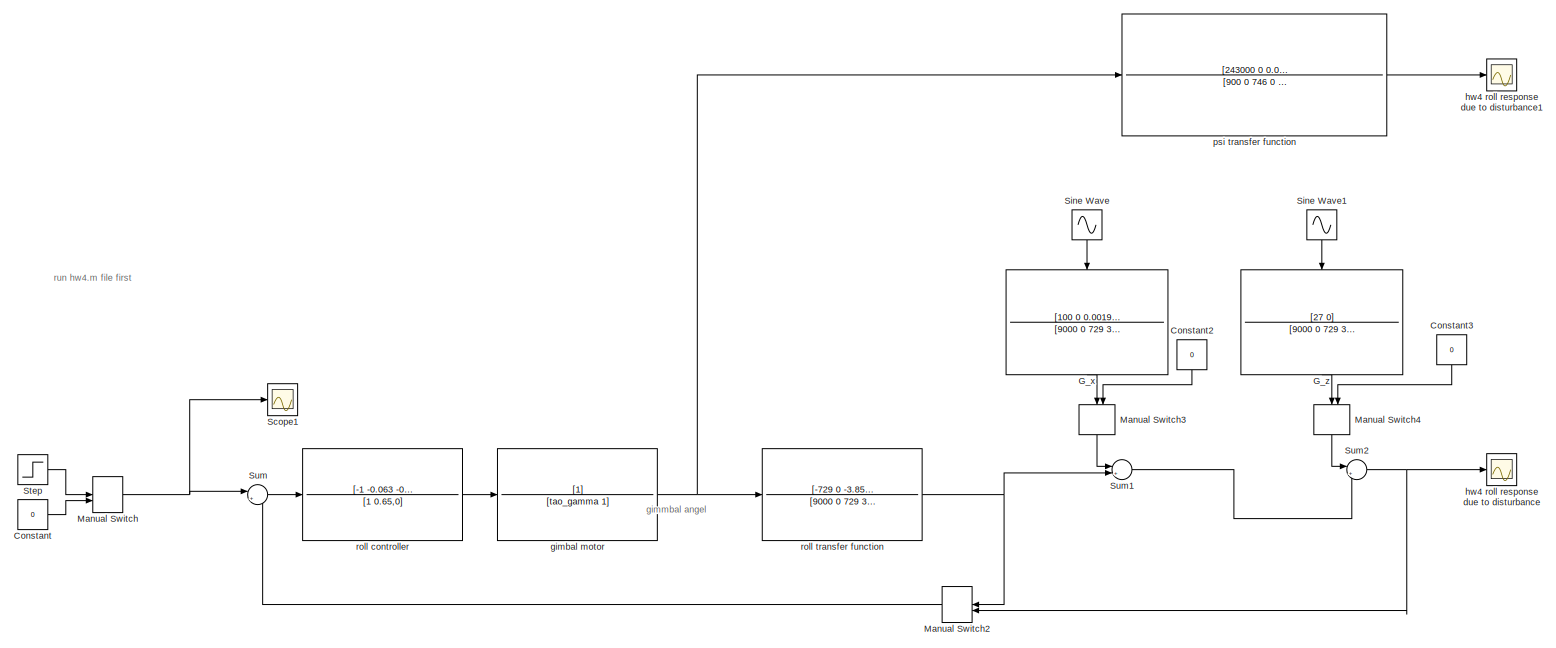
[diagram: root canvas - part 1/2, full width, top band]
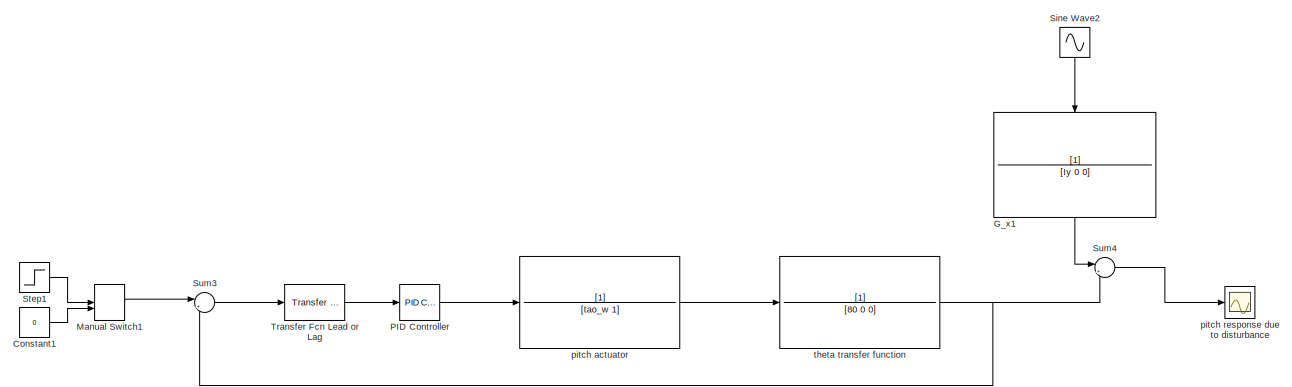
[diagram: root canvas - part 2/2, full width, bottom band]
MODEL slx_1a689a8380d3
KIND model
CONFIG AbsTol = auto
CONFIG EnableMultiTasking = off
CONFIG FixedStep = auto
CONFIG MaxStep = auto
CONFIG MinStep = auto
CONFIG RelTol = 1e-3
CONFIG SampleTimeConstraint = Unconstrained
CONFIG SolverName = VariableStepAuto
CONFIG StartTime = 0.0
CONFIG StopTime = 100
BLOCK [Constant] Constant
  Value = 0
BLOCK [Constant] Constant1
  Value = 0
BLOCK [Constant] Constant2
  NameLocation = left
  Value = 0
BLOCK [Constant] Constant3
  NameLocation = left
  Value = 0
BLOCK [TransferFcn] G_x
  Denominator = [9000 0 729 3.855e-6]
  NameLocation = left
  Numerator = [100 0 0.001963]
BLOCK [TransferFcn] G_x1
  Denominator = [Iy 0 0]
  NameLocation = left
BLOCK [TransferFcn] G_z
  Denominator = [9000 0 729 3.855e-6]
  NameLocation = left
  Numerator = [27 0]
BLOCK [ManualSwitch] Manual Switch
BLOCK [ManualSwitch] Manual Switch1
BLOCK [ManualSwitch] Manual Switch2
  CurrentSetting = 0
  NameLocation = top
BLOCK [ManualSwitch] Manual Switch3
  CurrentSetting = 0
  NameLocation = left
BLOCK [ManualSwitch] Manual Switch4
  CurrentSetting = 0
  NameLocation = left
BLOCK [Reference] PID Controller  REF=slpidlib/PID Controller
  LibrarySourceBlock = simulink/Continuous/PID Controller
  SourceBlock = slpidlib/PID Controller
  SourceType = PID 1dof
BLOCK [Scope] Scope1
  Floating = off
  NumInputPorts = 1
  ScopeSpecificationString = Simulink.scopes.TimeScopeBlockCfg('CurrentConfiguration', extmgr.ConfigurationSet(extmgr.Configuration('Core','General UI',true),extmgr.Configuration('Core','Source UI',true),extmgr.Configuration('Sources','WiredSimulink',true,'DataLoggingVariableName','ScopeData1'),extmgr.Configuration('Visuals','Time Domain',true,'SerializedDisplays',{struct('MinYLimReal','0.07727','MaxYLimReal','0.09727','YLabe...<+1370ch>
BLOCK [Sin] Sine Wave
  Amplitude = 10e-4
  Bias = 10e-5
  Frequency = w0
  NameLocation = left
  SampleTime = 0
BLOCK [Sin] Sine Wave1
  Amplitude = 10e-4
  Bias = 10e-5
  Frequency = w0
  NameLocation = left
  SampleTime = 0
BLOCK [Sin] Sine Wave2
  Amplitude = 10e-4
  Bias = 10e-5
  Frequency = w0
  NameLocation = left
  SampleTime = 0
BLOCK [Step] Step
  After = deg2rad(5)
  Before = deg2rad(5)
  SampleTime = 0
BLOCK [Step] Step1
  After = deg2rad(5)
  Before = deg2rad(5)
  SampleTime = 0
BLOCK [Sum] Sum
  Inputs = |+-
BLOCK [Sum] Sum1
  Inputs = |++
BLOCK [Sum] Sum2
  Inputs = |++
BLOCK [Sum] Sum3
  Inputs = |+-
BLOCK [Sum] Sum4
  Inputs = |++
BLOCK [Reference] Transfer Fcn Lead or Lag  REF=simulink/Discrete/Transfer Fcn
Lead or Lag
  SourceBlock = simulink/Discrete/Transfer Fcn\nLead or Lag
  SourceType = Lead or Lag Compensator
BLOCK [TransferFcn] gimbal motor
  Denominator = [tao_gamma 1]
BLOCK [Scope] hw4 roll response due to disturbance
  Floating = off
  NumInputPorts = 1
  ScopeSpecificationString = Simulink.scopes.TimeScopeBlockCfg('CurrentConfiguration', extmgr.ConfigurationSet(extmgr.Configuration('Core','General UI',true),extmgr.Configuration('Core','Source UI',true),extmgr.Configuration('Sources','WiredSimulink',true),extmgr.Configuration('Visuals','Time Domain',true,'SerializedDisplays',{struct('MinYLimReal','-0.00644','MaxYLimReal','0.00594','YLabelReal','','MinYLimMag','0.00000','MaxY...<+1324ch>
BLOCK [Scope] hw4 roll response due to disturbance1
  Floating = off
  NumInputPorts = 1
  ScopeSpecificationString = Simulink.scopes.TimeScopeBlockCfg('CurrentConfiguration', extmgr.ConfigurationSet(extmgr.Configuration('Core','General UI',true),extmgr.Configuration('Core','Source UI',true),extmgr.Configuration('Sources','WiredSimulink',true,'DataLoggingVariableName','ScopeData1'),extmgr.Configuration('Visuals','Time Domain',true,'SerializedDisplays',{struct('MinYLimReal','-5.85078','MaxYLimReal','6.26158','YLab...<+1380ch>
BLOCK [TransferFcn] pitch actuator
  Denominator = [tao_w 1]
BLOCK [Scope] pitch response due to disturbance
  Floating = off
  NumInputPorts = 1
  ScopeSpecificationString = Simulink.scopes.TimeScopeBlockCfg('CurrentConfiguration', extmgr.ConfigurationSet(extmgr.Configuration('Core','General UI',true),extmgr.Configuration('Core','Source UI',true),extmgr.Configuration('Sources','WiredSimulink',true,'DataLoggingVariableName','ScopeData2'),extmgr.Configuration('Visuals','Time Domain',true,'SerializedDisplays',{struct('MinYLimReal','-0.50638','MaxYLimReal','1.05268','YLab...<+1363ch>
BLOCK [TransferFcn] psi transfer function
  Denominator = [900 0 746 0 1.431 0 7.57e-9]
  Numerator = [243000 0 0.001285 0 2.803e-8 0]
BLOCK [TransferFcn] roll controller
  Denominator = [1 0.65,0]
  Numerator = [-1 -0.063 -0.00065]
BLOCK [TransferFcn] roll transfer function
  Denominator = [9000 0 729 3.855e-6]
  Numerator = [-729 0 -3.854e-6]
BLOCK [TransferFcn] theta transfer function
  Denominator = [80 0 0]
ANNOTATION (root): run hw4.m file first
ANNOTATION (root): gimmbal angel
LINE Constant1:1 -> Manual Switch1:2
LINE Constant2:1 -> Manual Switch3:2
LINE Constant3:1 -> Manual Switch4:2
LINE Constant:1 -> Manual Switch:2
LINE G_x1:1 -> Sum4:1
LINE G_x:1 -> Manual Switch3:1
LINE G_z:1 -> Manual Switch4:1
LINE Manual Switch1:1 -> Sum3:1
LINE Manual Switch2:1 -> Sum:2
LINE Manual Switch3:1 -> Sum1:1
LINE Manual Switch4:1 -> Sum2:1
NET Manual Switch:1 -> Scope1:1, Sum:1
LINE PID Controller:1 -> pitch actuator:1
LINE Sine Wave1:1 -> G_z:1
LINE Sine Wave2:1 -> G_x1:1
LINE Sine Wave:1 -> G_x:1
LINE Step1:1 -> Manual Switch1:1
LINE Step:1 -> Manual Switch:1
LINE Sum1:1 -> Sum2:2
NET Sum2:1 -> Manual Switch2:2, hw4 roll response due to disturbance:1
LINE Sum3:1 -> Transfer Fcn Lead or Lag:1
LINE Sum4:1 -> pitch response due to disturbance:1
LINE Sum:1 -> roll controller:1
LINE Transfer Fcn Lead or Lag:1 -> PID Controller:1
NET gimbal motor:1 -> psi transfer function:1, roll transfer function:1
LINE pitch actuator:1 -> theta transfer function:1
LINE psi transfer function:1 -> hw4 roll response due to disturbance1:1
LINE roll controller:1 -> gimbal motor:1
NET roll transfer function:1 -> Manual Switch2:1, Sum1:2
NET theta transfer function:1 -> Sum3:2, Sum4:2
note: NET lines group one-source signal fan-out (src -> all destinations, sorted); 1:1 wires keep LINE
